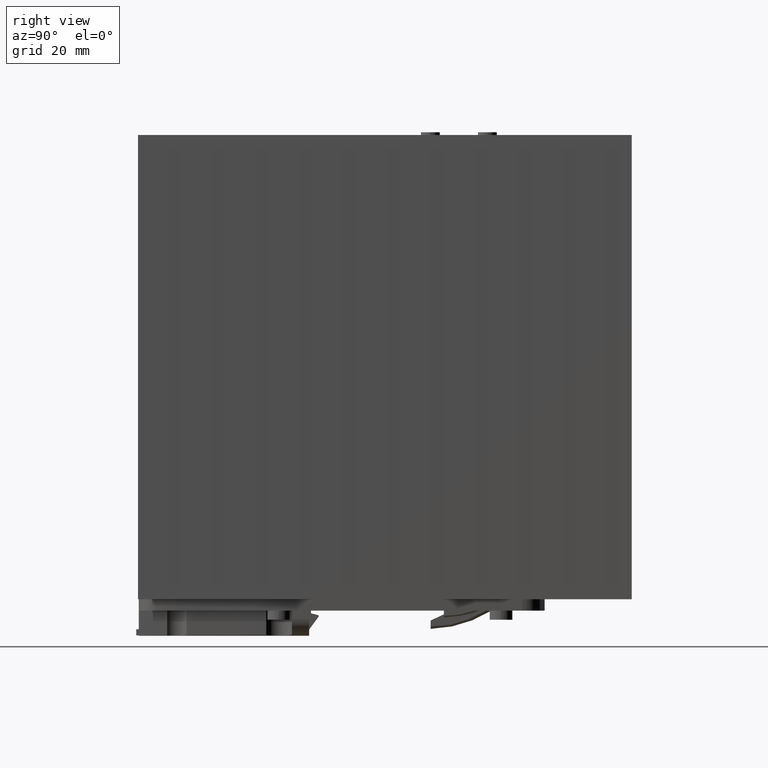
[diagram: clean part render]
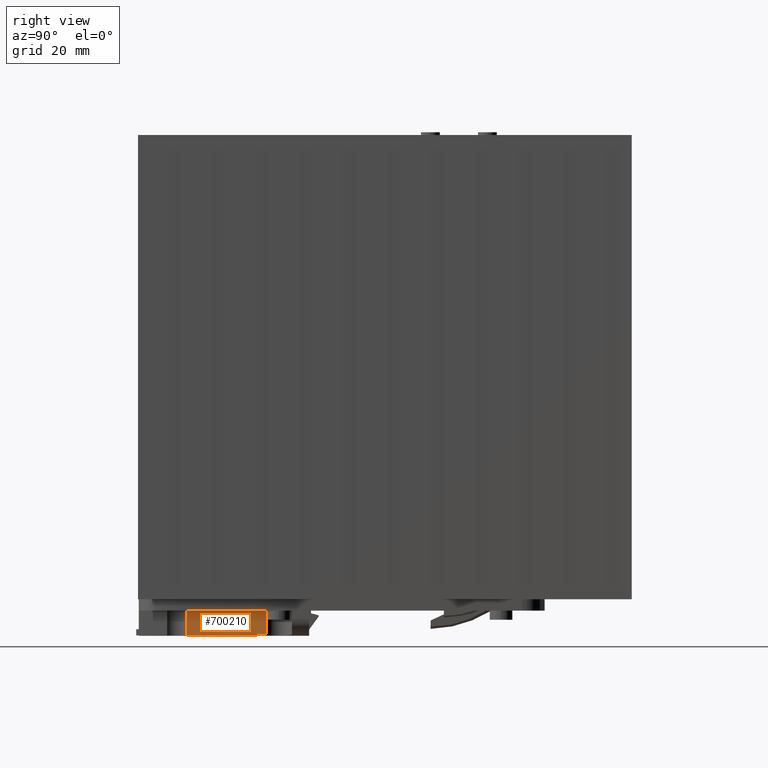
[diagram: same view with one face highlighted and labeled with its STEP entity id]
A machine part, right view. The second image highlights one B-rep face of the part: STEP entity #700210.
In plain terms, the highlighted cylindrical surface (partial cylindrical patch) has radius 401.5 mm, axis along (-0, 0, -1).
Its self-contained STEP definition (entity closure, byte-faithful):
#681670=CARTESIAN_POINT('',(27.3048407900038,12.7735050022922,
0.131245795154342));
#681680=VERTEX_POINT('',#681670);
#681710=CARTESIAN_POINT('',(28.2357244112667,33.7857341003012,
0.233323904833924));
#681720=CARTESIAN_POINT('',(28.2198812613401,32.9094144879281,
0.231334833045736));
#681730=CARTESIAN_POINT('',(28.1824556578638,31.1568731499482,
0.226661551313413));
#681740=CARTESIAN_POINT('',(28.1091031168048,28.5284801966004,
0.217665717972039));
#681750=CARTESIAN_POINT('',(28.0185370941437,25.9005861489469,
0.206812945509284));
#681760=CARTESIAN_POINT('',(27.9107634772597,23.2733423620739,
0.19426305779993));
#681770=CARTESIAN_POINT('',(27.7857862197248,20.6468673484488,
0.180205162220062));
#681780=CARTESIAN_POINT('',(27.6436121483921,18.0212807075947,
0.164858488850882));
#681790=CARTESIAN_POINT('',(27.4842490500393,15.3967318565973,
0.148471519087593));
#681800=CARTESIAN_POINT('',(27.3665518904643,13.647776455762,
0.137038395468295));
#681810=CARTESIAN_POINT('',(27.3048407900088,12.7735050027357,
0.131245795149567));
#681820=B_SPLINE_CURVE_WITH_KNOTS('',3,(#681710,#681720,#681730,#681740,
#681750,#681760,#681770,#681780,#681790,#681800,#681810),.UNSPECIFIED.,
.F.,.F.,(4,1,1,1,1,1,1,1,4),(0.,0.124999077879369,0.24999859071467,
0.3749991528203,0.49999991536043,0.625000702189714,0.750001301312605,
0.875000866679188,1.),.UNSPECIFIED.);
#681830=CARTESIAN_POINT('',(28.2357244112665,33.7857341003012,
0.233323904833867));
#681840=VERTEX_POINT('',#681830);
#681850=EDGE_CURVE('',#681840,#681680,#681820,.T.);
#684840=CARTESIAN_POINT('',(28.2357244112665,33.7857341003012,
6.59999999999972));
#684850=VERTEX_POINT('',#684840);
#684900=CARTESIAN_POINT('',(28.2357244112669,33.785734100301,
6.76426461109753));
#684910=DIRECTION('',(9.95682444457783E-60,-3.26265223399926E-55,-1.));
#684920=VECTOR('',#684910,1.);
#684930=LINE('',#684900,#684920);
#684940=EDGE_CURVE('',#684850,#681840,#684930,.T.);
#699970=CARTESIAN_POINT('',(-373.198675095222,41.0433434100426,
6.76172328077224));
#699980=DIRECTION('',(9.95682444457783E-60,-3.26265223399926E-55,-1.));
#699990=DIRECTION('',(-1.,1.38913403349705E-19,-9.95682444457783E-60));
#700000=AXIS2_PLACEMENT_3D('',#699970,#699980,#699990);
#700010=CYLINDRICAL_SURFACE('',#700000,401.500000000035);
#700020=ORIENTED_EDGE('',*,*,#681850,.F.);
#700030=CARTESIAN_POINT('',(27.3048407900053,12.773505002303,
6.76172328077224));
#700040=DIRECTION('',(9.95682444457783E-60,-3.26265223399926E-55,-1.));
#700050=VECTOR('',#700040,1.);
#700060=LINE('',#700030,#700050);
#700070=CARTESIAN_POINT('',(27.304840790004,12.7735050022907,
6.59999999999972));
#700080=VERTEX_POINT('',#700070);
#700090=EDGE_CURVE('',#700080,#681680,#700060,.T.);
#700100=ORIENTED_EDGE('',*,*,#700090,.T.);
#700110=CARTESIAN_POINT('',(-373.198675095222,41.0433434100426,
6.59999999999972));
#700120=DIRECTION('',(9.95682444457783E-60,-3.26265223399926E-55,-1.));
#700130=DIRECTION('',(-1.,1.38913403349705E-19,-9.95682444457783E-60));
#700140=AXIS2_PLACEMENT_3D('',#700110,#700120,#700130);
#700150=CIRCLE('',#700140,401.500000000035);
#700160=EDGE_CURVE('',#684850,#700080,#700150,.T.);
#700170=ORIENTED_EDGE('',*,*,#700160,.T.);
#700180=ORIENTED_EDGE('',*,*,#684940,.F.);
#700190=EDGE_LOOP('',(#700180,#700170,#700100,#700020));
#700200=FACE_OUTER_BOUND('',#700190,.T.);
#700210=ADVANCED_FACE('',(#700200),#700010,.T.);